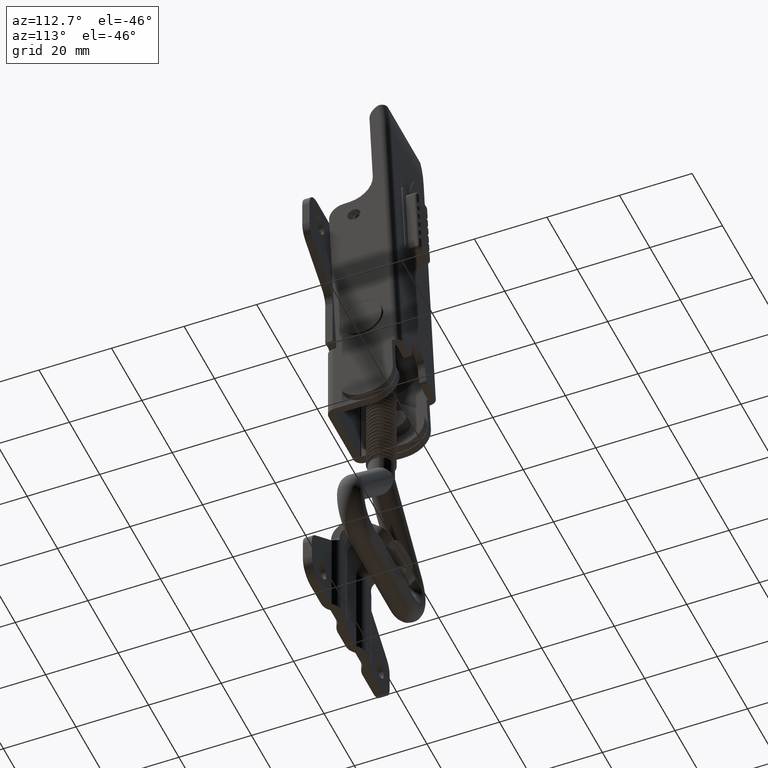
[diagram: clean part render]
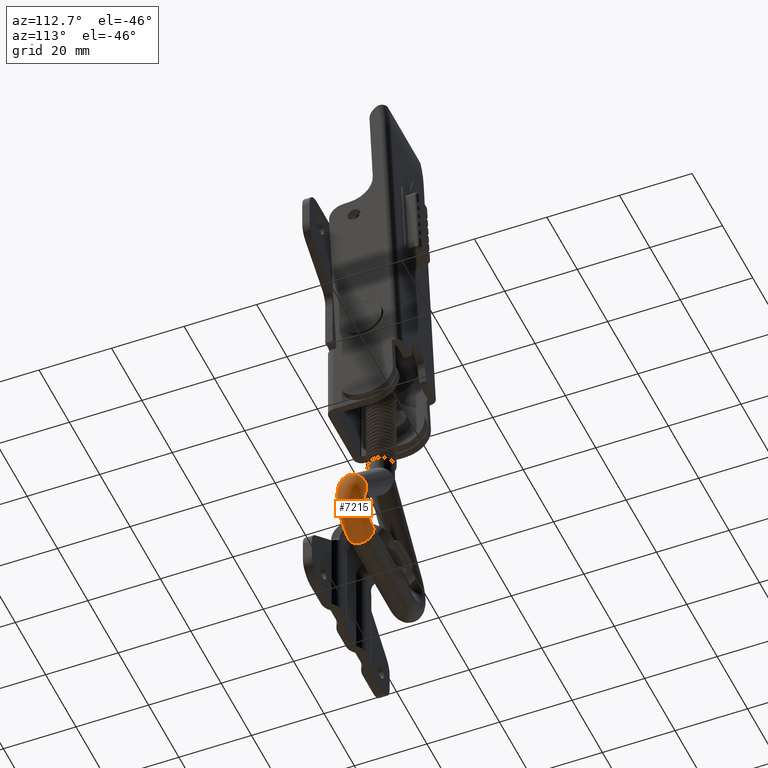
[diagram: same view with one face highlighted and labeled with its STEP entity id]
A machine part, auxiliary view. The second image highlights one B-rep face of the part: STEP entity #7215.
In plain terms, the highlighted toroidal blend (fillet) surface has major radius 7 mm and minor (blend) radius 3.5 mm.
Its self-contained STEP definition (entity closure, byte-faithful):
#53=TOROIDAL_SURFACE('',#7683,7.00000000000019,3.5);
#1706=FACE_BOUND('',#2278,.T.);
#1881=FACE_OUTER_BOUND('',#2277,.T.);
#2277=EDGE_LOOP('',(#5663));
#2278=EDGE_LOOP('',(#5664));
#2674=CIRCLE('',#7680,3.5);
#2676=CIRCLE('',#7684,3.5);
#3251=VERTEX_POINT('',#32730);
#3253=VERTEX_POINT('',#32736);
#4132=EDGE_CURVE('',#3251,#3251,#2674,.T.);
#4134=EDGE_CURVE('',#3253,#3253,#2676,.T.);
#5663=ORIENTED_EDGE('',*,*,#4132,.T.);
#5664=ORIENTED_EDGE('',*,*,#4134,.F.);
#7215=ADVANCED_FACE('',(#1881,#1706),#53,.T.);
#7680=AXIS2_PLACEMENT_3D('',#32731,#8772,#8773);
#7683=AXIS2_PLACEMENT_3D('',#32735,#8778,#8779);
#7684=AXIS2_PLACEMENT_3D('',#32737,#8780,#8781);
#8772=DIRECTION('center_axis',(-4.27435864480685E-15,0.,-1.));
#8773=DIRECTION('ref_axis',(0.,1.,0.));
#8778=DIRECTION('center_axis',(0.,-1.,0.));
#8779=DIRECTION('ref_axis',(0.,0.,-1.));
#8780=DIRECTION('center_axis',(0.737277336810126,0.,0.675590207615658));
#8781=DIRECTION('ref_axis',(0.,1.,0.));
#32730=CARTESIAN_POINT('',(-53.8,-1.68272461434557,-13.1499999999996));
#32731=CARTESIAN_POINT('Origin',(-57.3,-1.68272461434557,-13.1499999999996));
#32735=CARTESIAN_POINT('Origin',(-50.2999999999998,-1.68272461434557,-13.1499999999996));
#32736=CARTESIAN_POINT('',(-45.57086854669,-5.18272461434557,-18.3109413576706));
#32737=CARTESIAN_POINT('Origin',(-45.57086854669,-1.68272461434557,-18.3109413576706));